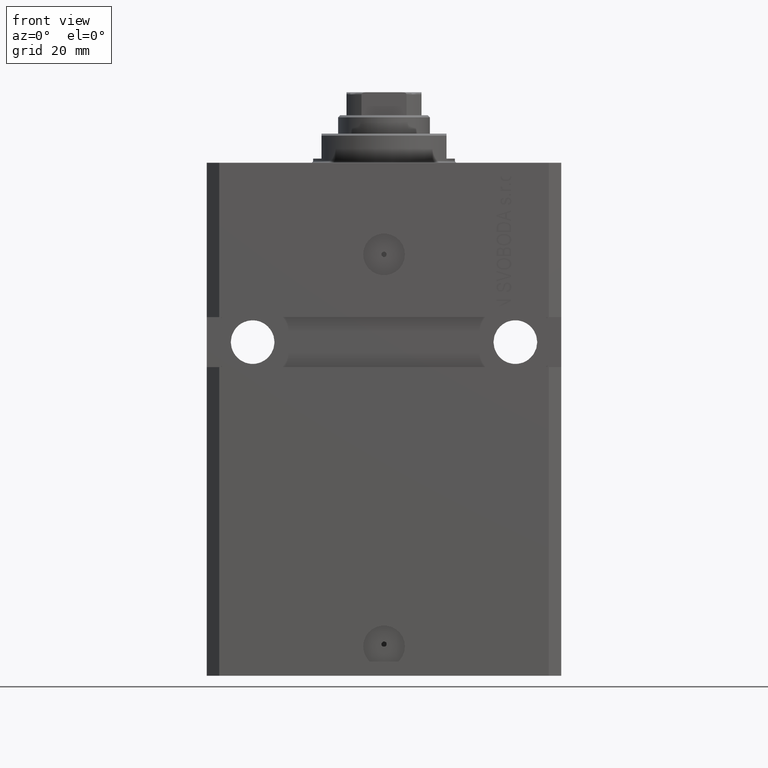
[diagram: clean part render]
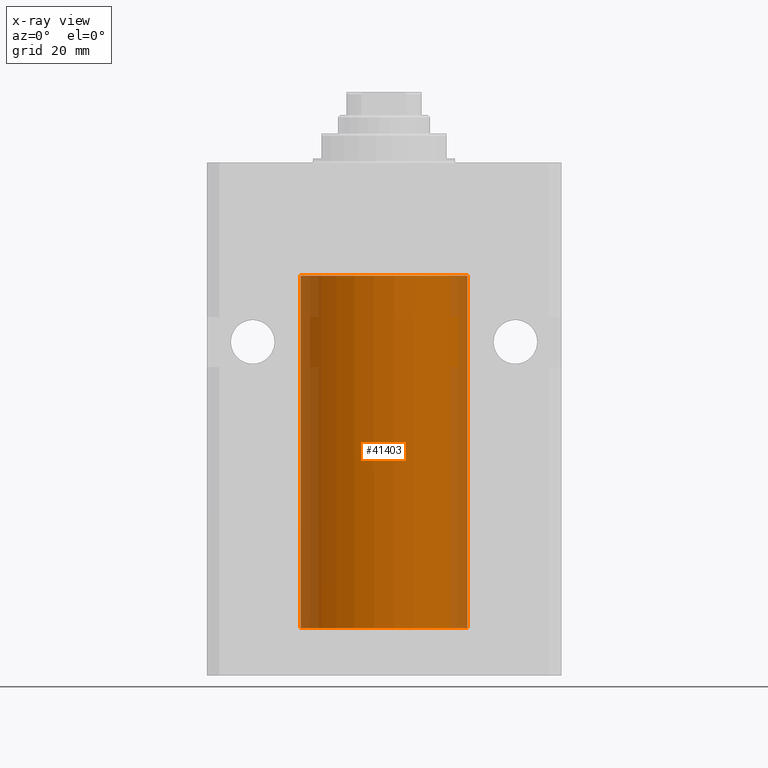
[diagram: x-ray — body ghosted, one internal face saturated and labeled with its STEP entity id]
A machine part, front view, then the same camera in x-ray: the body is ghosted and one INTERNAL B-rep face — a face not visible from any outside direction — is saturated and labeled: STEP entity #41403.
In plain terms, the highlighted cylindrical surface (partial cylindrical patch) has radius 20 mm, axis along (0, 0, 1).
Its self-contained STEP definition (entity closure, byte-faithful):
#1195 = LINE ( 'NONE', #7998, #19744 ) ;
#1238 = EDGE_LOOP ( 'NONE', ( #18297, #31739, #39199, #1857, #32027, #27428 ) ) ;
#1857 = ORIENTED_EDGE ( 'NONE', *, *, #30394, .T. ) ;
#3863 = CARTESIAN_POINT ( 'NONE',  ( -20.00000000000010303, 3.580159290815452135E-13, -109.6250000000033253 ) ) ;
#6822 = DIRECTION ( 'NONE',  ( 1.000000000000000000, 0.000000000000000000, 0.000000000000000000 ) ) ;
#7998 = CARTESIAN_POINT ( 'NONE',  ( 20.00000000000000000, 0.000000000000000000, -111.6000000000000085 ) ) ;
#9697 = CARTESIAN_POINT ( 'NONE',  ( -20.00000000000000000, 2.449293598294706513E-15, -111.6000000000000085 ) ) ;
#10009 = CARTESIAN_POINT ( 'NONE',  ( 0.000000000000000000, 0.000000000000000000, -27.10000000000000142 ) ) ;
#12581 = CARTESIAN_POINT ( 'NONE',  ( -19.99022768983530440, -0.6251375268966076204, -108.8356630308822162 ) ) ;
#13611 = DIRECTION ( 'NONE',  ( -0.000000000000000000, -0.000000000000000000, 1.000000000000000000 ) ) ;
#17661 = CARTESIAN_POINT ( 'NONE',  ( -20.00000000000000000, 2.449293598294706513E-15, -27.10000000000000142 ) ) ;
#18297 = ORIENTED_EDGE ( 'NONE', *, *, #30762, .F. ) ;
#18709 = EDGE_CURVE ( 'NONE', #29166, #24933, #36547, .T. ) ;
#19744 = VECTOR ( 'NONE', #28840, 1000.000000000000000 ) ;
#19981 = DIRECTION ( 'NONE',  ( 0.000000000000000000, 0.000000000000000000, 1.000000000000000000 ) ) ;
#21420 = VERTEX_POINT ( 'NONE', #23414 ) ;
#22387 = VECTOR ( 'NONE', #23517, 1000.000000000000000 ) ;
#22556 = CARTESIAN_POINT ( 'NONE',  ( -19.99255948581289033, -0.5575529953197871924, -108.6738333567126631 ) ) ;
#22635 = VERTEX_POINT ( 'NONE', #3863 ) ;
#22783 = CARTESIAN_POINT ( 'NONE',  ( -20.00000000000000355, -0.1631318982819179308, -109.6250000000001279 ) ) ;
#23414 = CARTESIAN_POINT ( 'NONE',  ( 20.00000000000000000, 0.000000000000000000, -111.6000000000000085 ) ) ;
#23517 = DIRECTION ( 'NONE',  ( -0.000000000000000000, -0.000000000000000000, 1.000000000000000000 ) ) ;
#23539 = CARTESIAN_POINT ( 'NONE',  ( -20.00000000000000000, -1.494965790691426527E-14, -108.3750000000000000 ) ) ;
#24079 = DIRECTION ( 'NONE',  ( 0.000000000000000000, 0.000000000000000000, 1.000000000000000000 ) ) ;
#24933 = VERTEX_POINT ( 'NONE', #43596 ) ;
#25741 = CARTESIAN_POINT ( 'NONE',  ( -20.00000000000000000, -0.1651542110816476838, -108.3750000000000142 ) ) ;
#26298 = EDGE_CURVE ( 'NONE', #34802, #22635, #35158, .T. ) ;
#27016 = FACE_OUTER_BOUND ( 'NONE', #1238, .T. ) ;
#27247 = DIRECTION ( 'NONE',  ( -0.000000000000000000, -0.000000000000000000, 1.000000000000000000 ) ) ;
#27428 = ORIENTED_EDGE ( 'NONE', *, *, #40548, .F. ) ;
#27742 = AXIS2_PLACEMENT_3D ( 'NONE', #37892, #27247, #30650 ) ;
#28840 = DIRECTION ( 'NONE',  ( -0.000000000000000000, -0.000000000000000000, 1.000000000000000000 ) ) ;
#29166 = VERTEX_POINT ( 'NONE', #17661 ) ;
#29818 = CARTESIAN_POINT ( 'NONE',  ( -19.99767054355995555, -0.3263099029014887020, -109.5574110824076541 ) ) ;
#30394 = EDGE_CURVE ( 'NONE', #34432, #29166, #40747, .T. ) ;
#30650 = DIRECTION ( 'NONE',  ( 1.000000000000000000, 0.000000000000000000, 0.000000000000000000 ) ) ;
#30762 = EDGE_CURVE ( 'NONE', #34802, #21420, #35455, .T. ) ;
#31119 = DIRECTION ( 'NONE',  ( 1.000000000000000000, 0.000000000000000000, 0.000000000000000000 ) ) ;
#31739 = ORIENTED_EDGE ( 'NONE', *, *, #26298, .T. ) ;
#31976 = CARTESIAN_POINT ( 'NONE',  ( -20.00000000000000000, 2.449293598294706513E-15, -111.6000000000000085 ) ) ;
#32027 = ORIENTED_EDGE ( 'NONE', *, *, #18709, .T. ) ;
#32996 = CARTESIAN_POINT ( 'NONE',  ( -20.00000000000000000, -1.494965790691426527E-14, -108.3750000000000000 ) ) ;
#34299 = CARTESIAN_POINT ( 'NONE',  ( 0.000000000000000000, 0.000000000000000000, -111.6000000000000085 ) ) ;
#34432 = VERTEX_POINT ( 'NONE', #23539 ) ;
#34802 = VERTEX_POINT ( 'NONE', #31976 ) ;
#35158 = LINE ( 'NONE', #44670, #43265 ) ;
#35455 = CIRCLE ( 'NONE', #39777, 20.00000000000000000 ) ;
#36547 = CIRCLE ( 'NONE', #40923, 20.00000000000000000 ) ;
#37613 = EDGE_CURVE ( 'NONE', #22635, #34432, #44553, .T. ) ;
#37892 = CARTESIAN_POINT ( 'NONE',  ( 0.000000000000000000, 0.000000000000000000, -111.6000000000000085 ) ) ;
#39199 = ORIENTED_EDGE ( 'NONE', *, *, #37613, .T. ) ;
#39340 = CARTESIAN_POINT ( 'NONE',  ( -19.99765984516762174, -0.3269569594424159842, -108.4429100894329991 ) ) ;
#39777 = AXIS2_PLACEMENT_3D ( 'NONE', #34299, #24079, #31119 ) ;
#40246 = CARTESIAN_POINT ( 'NONE',  ( -20.00000000000010303, 3.580159290815452135E-13, -109.6250000000033253 ) ) ;
#40548 = EDGE_CURVE ( 'NONE', #21420, #24933, #1195, .T. ) ;
#40747 = LINE ( 'NONE', #9697, #22387 ) ;
#40923 = AXIS2_PLACEMENT_3D ( 'NONE', #10009, #19981, #6822 ) ;
#41403 = ADVANCED_FACE ( 'NONE', ( #27016 ), #44695, .F. ) ;
#43185 = CARTESIAN_POINT ( 'NONE',  ( -19.99023630310506761, -0.6248620367829642586, -109.1653813832953404 ) ) ;
#43265 = VECTOR ( 'NONE', #13611, 1000.000000000000000 ) ;
#43596 = CARTESIAN_POINT ( 'NONE',  ( 20.00000000000000000, 0.000000000000000000, -27.10000000000000142 ) ) ;
#43641 = CARTESIAN_POINT ( 'NONE',  ( -19.99257639367449357, -0.5569510432580383474, -109.3270944862517098 ) ) ;
#44553 = B_SPLINE_CURVE_WITH_KNOTS ( 'NONE', 3,
 ( #40246, #22783, #29818, #43641, #43185, #12581, #22556, #39340, #25741, #32996 ),
 .UNSPECIFIED., .F., .F.,
 ( 4, 2, 2, 2, 4 ),
 ( 0.001954154509844217673, 0.002442582466643778739, 0.002931010423443339372, 0.003419438380242900005, 0.003907866337042461072 ),
 .UNSPECIFIED. ) ;
#44670 = CARTESIAN_POINT ( 'NONE',  ( -20.00000000000000000, 2.449293598294706513E-15, -111.6000000000000085 ) ) ;
#44695 = CYLINDRICAL_SURFACE ( 'NONE', #27742, 20.00000000000000000 ) ;